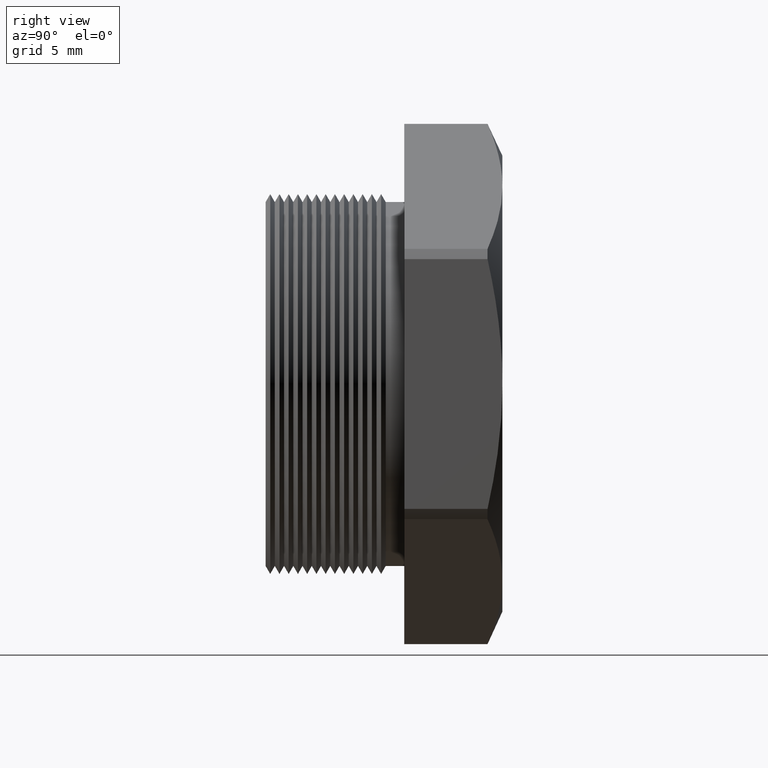
[diagram: clean part render]
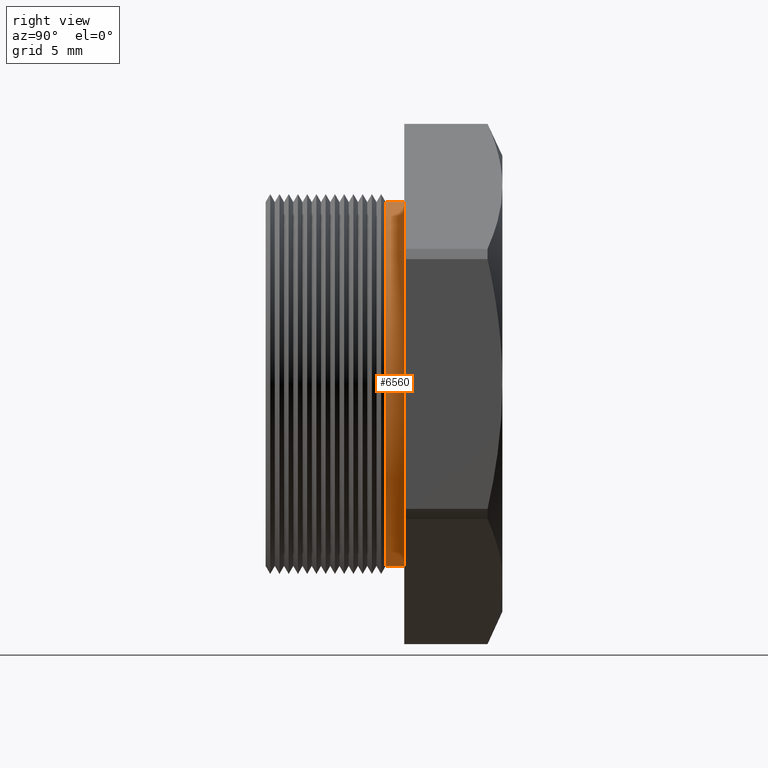
[diagram: same view with one face highlighted and labeled with its STEP entity id]
A machine part, right view. The second image highlights one B-rep face of the part: STEP entity #6560.
In plain terms, the highlighted cylindrical surface (partial cylindrical patch) has radius 8.001 mm, axis along (-0, -1, -0).
Its self-contained STEP definition (entity closure, byte-faithful):
#1819 = CARTESIAN_POINT ( 'NONE',  ( 0.0000000000000000000, 0.2055072448100089500, -0.3150000000000000000 ) ) ;
#2429 = DIRECTION ( 'NONE',  ( 0.0000000000000000000, 0.0000000000000000000, -1.000000000000000000 ) ) ;
#2430 = DIRECTION ( 'NONE',  ( 0.0000000000000000000, -1.000000000000000000, 0.0000000000000000000 ) ) ;
#2431 = CARTESIAN_POINT ( 'NONE',  ( 0.0000000000000000000, 0.2055072448100089500, 0.0000000000000000000 ) ) ;
#2432 = AXIS2_PLACEMENT_3D ( 'NONE', #2431, #2430, #2429 ) ;
#2437 = CIRCLE ( 'NONE', #2432, 0.3150000000000000000 ) ;
#2775 = CARTESIAN_POINT ( 'NONE',  ( 3.857637417314162700E-017, 0.2055072448100089500, 0.3150000000000000000 ) ) ;
#4818 = VERTEX_POINT ( 'NONE', #1819 ) ;
#5140 = EDGE_CURVE ( 'NONE', #4818, #5277, #2437, .T. ) ;
#5277 = VERTEX_POINT ( 'NONE', #2775 ) ;
#6203 = DIRECTION ( 'NONE',  ( 0.0000000000000000000, 0.0000000000000000000, -1.000000000000000000 ) ) ;
#6204 = DIRECTION ( 'NONE',  ( -0.0000000000000000000, -1.000000000000000000, -0.0000000000000000000 ) ) ;
#6205 = CARTESIAN_POINT ( 'NONE',  ( 0.0000000000000000000, 0.2375548905829479900, 0.0000000000000000000 ) ) ;
#6206 = AXIS2_PLACEMENT_3D ( 'NONE', #6205, #6204, #6203 ) ;
#6207 = CIRCLE ( 'NONE', #6206, 0.3150000000000000000 ) ;
#6208 = CARTESIAN_POINT ( 'NONE',  ( 3.857637417314162700E-017, 0.2375548905829479900, 0.3150000000000000000 ) ) ;
#6235 = DIRECTION ( 'NONE',  ( 0.0000000000000000000, 0.0000000000000000000, -1.000000000000000000 ) ) ;
#6236 = DIRECTION ( 'NONE',  ( -0.0000000000000000000, -1.000000000000000000, -0.0000000000000000000 ) ) ;
#6237 = CARTESIAN_POINT ( 'NONE',  ( 0.0000000000000000000, 0.0000000000000000000, 0.0000000000000000000 ) ) ;
#6238 = AXIS2_PLACEMENT_3D ( 'NONE', #6237, #6236, #6235 ) ;
#6239 = CYLINDRICAL_SURFACE ( 'NONE', #6238, 0.3150000000000000000 ) ;
#6240 = CARTESIAN_POINT ( 'NONE',  ( 0.0000000000000000000, 0.2375548905829479900, -0.3150000000000000000 ) ) ;
#6241 = FACE_OUTER_BOUND ( 'NONE', #6532, .T. ) ;
#6242 = DIRECTION ( 'NONE',  ( -0.0000000000000000000, -1.000000000000000000, -0.0000000000000000000 ) ) ;
#6243 = VECTOR ( 'NONE', #6242, 39.37007874015748100 ) ;
#6244 = CARTESIAN_POINT ( 'NONE',  ( 0.0000000000000000000, 0.0000000000000000000, -0.3150000000000000000 ) ) ;
#6245 = LINE ( 'NONE', #6244, #6243 ) ;
#6246 = DIRECTION ( 'NONE',  ( -0.0000000000000000000, -1.000000000000000000, -0.0000000000000000000 ) ) ;
#6247 = VECTOR ( 'NONE', #6246, 39.37007874015748100 ) ;
#6248 = CARTESIAN_POINT ( 'NONE',  ( 3.857637417314162700E-017, 0.0000000000000000000, 0.3150000000000000000 ) ) ;
#6249 = LINE ( 'NONE', #6248, #6247 ) ;
#6532 = EDGE_LOOP ( 'NONE', ( #6541, #6578, #6553, #6546 ) ) ;
#6539 = VERTEX_POINT ( 'NONE', #6208 ) ;
#6541 = ORIENTED_EDGE ( 'NONE', *, *, #6543, .T. ) ;
#6543 = EDGE_CURVE ( 'NONE', #6561, #6539, #6207, .T. ) ;
#6546 = ORIENTED_EDGE ( 'NONE', *, *, #6559, .F. ) ;
#6553 = ORIENTED_EDGE ( 'NONE', *, *, #5140, .F. ) ;
#6557 = EDGE_CURVE ( 'NONE', #6539, #5277, #6249, .T. ) ;
#6559 = EDGE_CURVE ( 'NONE', #6561, #4818, #6245, .T. ) ;
#6560 = ADVANCED_FACE ( 'NONE', ( #6241 ), #6239, .T. ) ;
#6561 = VERTEX_POINT ( 'NONE', #6240 ) ;
#6578 = ORIENTED_EDGE ( 'NONE', *, *, #6557, .T. ) ;